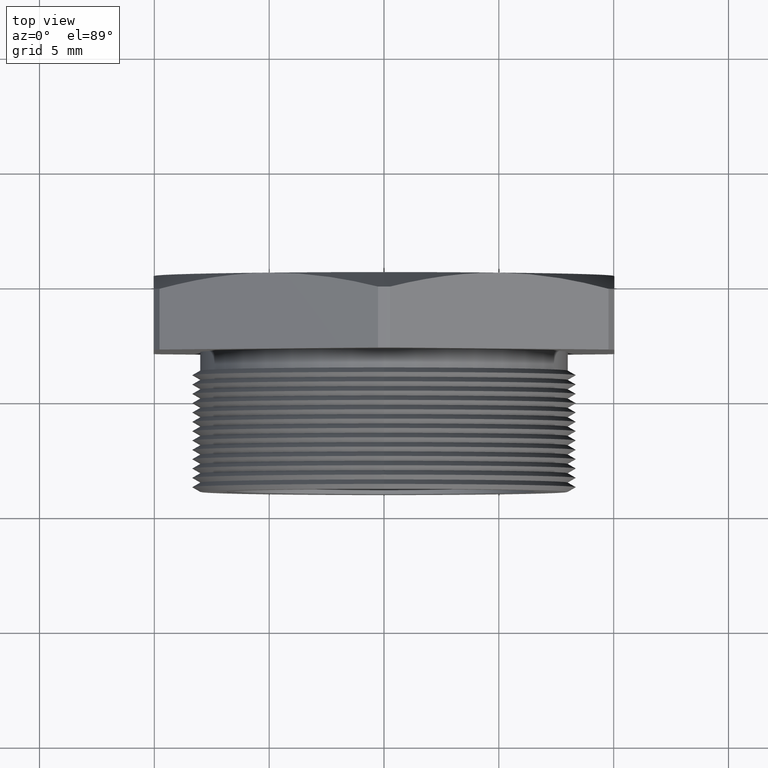
[diagram: clean part render]
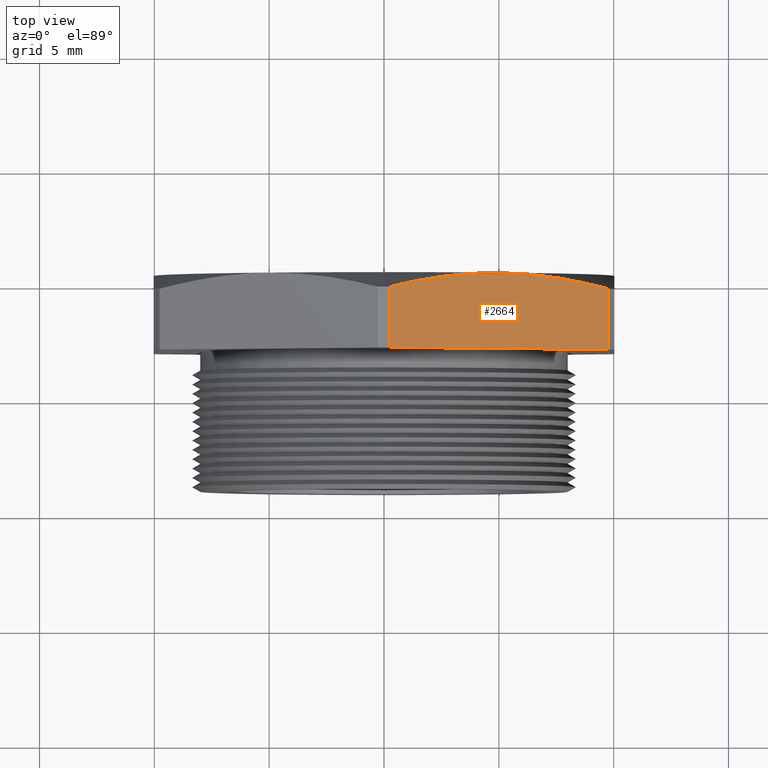
[diagram: same view with one face highlighted and labeled with its STEP entity id]
A machine part, top view. The second image highlights one B-rep face of the part: STEP entity #2664.
In plain terms, the highlighted planar face has unit normal (0.5, -0, 0.866).
Its self-contained STEP definition (entity closure, byte-faithful):
#12 = ORIENTED_EDGE ( 'NONE', *, *, #13, .F. ) ;
#13 = EDGE_CURVE ( 'NONE', #201, #2683, #1869, .T. ) ;
#15 = ORIENTED_EDGE ( 'NONE', *, *, #16, .T. ) ;
#16 = EDGE_CURVE ( 'NONE', #110, #1653, #1861, .T. ) ;
#110 = VERTEX_POINT ( 'NONE', #2092 ) ;
#201 = VERTEX_POINT ( 'NONE', #2261 ) ;
#1653 = VERTEX_POINT ( 'NONE', #5057 ) ;
#1661 = VERTEX_POINT ( 'NONE', #5038 ) ;
#1663 = EDGE_CURVE ( 'NONE', #1653, #1661, #5036, .T. ) ;
#1855 = CARTESIAN_POINT ( 'NONE',  ( 0.1975000000000001800, 0.4075548905829479700, 0.3420800344948533000 ) ) ;
#1856 = CARTESIAN_POINT ( 'NONE',  ( 0.2289182622552072300, 0.4075548905829479700, 0.3239406923243393600 ) ) ;
#1857 = CARTESIAN_POINT ( 'NONE',  ( 0.2602199223343859600, 0.4051865378565921400, 0.3058686704515431500 ) ) ;
#1858 = CARTESIAN_POINT ( 'NONE',  ( 0.3226184986981740500, 0.3962912005447678500, 0.2698428355908606400 ) ) ;
#1859 = CARTESIAN_POINT ( 'NONE',  ( 0.3537166105170322900, 0.3897884989263423700, 0.2518883323609538100 ) ) ;
#1860 = CARTESIAN_POINT ( 'NONE',  ( 0.3847399997329630200, 0.3817680770869766300, 0.2339769702459616700 ) ) ;
#1861 = B_SPLINE_CURVE_WITH_KNOTS ( 'NONE', 3,
 ( #1860, #1859, #1858, #1857, #1856, #1855 ),
 .UNSPECIFIED., .F., .F.,
 ( 4, 2, 4 ),
 ( 2.335025902633483100E-007, 0.002760212844509914900, 0.005520192186429569000 ),
 .UNSPECIFIED. ) ;
#1862 = DIRECTION ( 'NONE',  ( -0.8660254037844386000, 0.0000000000000000000, 0.5000000000000002200 ) ) ;
#1863 = VECTOR ( 'NONE', #1862, 39.37007874015747400 ) ;
#1864 = CARTESIAN_POINT ( 'NONE',  ( 0.4337500000000000200, 0.2775548905829479700, 0.2056810333988042200 ) ) ;
#1869 = LINE ( 'NONE', #1864, #1863 ) ;
#2092 = CARTESIAN_POINT ( 'NONE',  ( 0.3847399997329630200, 0.3817680770869766300, 0.2339769702459616700 ) ) ;
#2261 = CARTESIAN_POINT ( 'NONE',  ( 0.3847399997329628600, 0.2775548905829479700, 0.2339769702459617900 ) ) ;
#2518 = EDGE_CURVE ( 'NONE', #110, #201, #5590, .T. ) ;
#2659 = ORIENTED_EDGE ( 'NONE', *, *, #2518, .F. ) ;
#2662 = EDGE_LOOP ( 'NONE', ( #2659, #15, #6278, #6279, #12 ) ) ;
#2664 = ADVANCED_FACE ( 'NONE', ( #5871 ), #5870, .T. ) ;
#2683 = VERTEX_POINT ( 'NONE', #5894 ) ;
#2684 = EDGE_CURVE ( 'NONE', #2683, #1661, #5888, .T. ) ;
#5030 = CARTESIAN_POINT ( 'NONE',  ( 0.1350411223813806300, 0.4052207272773963300, 0.3781406843012452000 ) ) ;
#5031 = CARTESIAN_POINT ( 'NONE',  ( 0.1663280206471310900, 0.4075548905829478600, 0.3600771851654057700 ) ) ;
#5032 = CARTESIAN_POINT ( 'NONE',  ( 0.1975000000000001800, 0.4075548905829479700, 0.3420800344948533000 ) ) ;
#5036 = B_SPLINE_CURVE_WITH_KNOTS ( 'NONE', 3,
 ( #5032, #5031, #5030, #5092, #5091, #5090 ),
 .UNSPECIFIED., .F., .F.,
 ( 4, 2, 4 ),
 ( 0.005520192186429569000, 0.008258536476824115300, 0.01099688076721866100 ),
 .UNSPECIFIED. ) ;
#5038 = CARTESIAN_POINT ( 'NONE',  ( 0.01026000026703712300, 0.3817680770869766300, 0.4501830987437449600 ) ) ;
#5057 = CARTESIAN_POINT ( 'NONE',  ( 0.1975000000000001800, 0.4075548905829479700, 0.3420800344948533000 ) ) ;
#5090 = CARTESIAN_POINT ( 'NONE',  ( 0.01026000026703712300, 0.3817680770869766300, 0.4501830987437449600 ) ) ;
#5091 = CARTESIAN_POINT ( 'NONE',  ( 0.04113558834110801800, 0.3897502881590466700, 0.4323570696577921400 ) ) ;
#5092 = CARTESIAN_POINT ( 'NONE',  ( 0.07225680565382722200, 0.3962764420413619800, 0.4143892264647847100 ) ) ;
#5587 = DIRECTION ( 'NONE',  ( -0.0000000000000000000, -1.000000000000000000, -0.0000000000000000000 ) ) ;
#5588 = VECTOR ( 'NONE', #5587, 39.37007874015748100 ) ;
#5589 = CARTESIAN_POINT ( 'NONE',  ( 0.3847399997329630800, 0.0000000000000000000, 0.2339769702459615400 ) ) ;
#5590 = LINE ( 'NONE', #5589, #5588 ) ;
#5865 = DIRECTION ( 'NONE',  ( 0.8660254037844386000, 0.0000000000000000000, -0.5000000000000001100 ) ) ;
#5866 = DIRECTION ( 'NONE',  ( 0.5000000000000001100, -0.0000000000000000000, 0.8660254037844386000 ) ) ;
#5867 = AXIS2_PLACEMENT_3D ( 'NONE', #5869, #5866, #5865 ) ;
#5869 = CARTESIAN_POINT ( 'NONE',  ( 0.3949999999999999100, 0.4075548905829479700, 0.2280533563299023100 ) ) ;
#5870 = PLANE ( 'NONE',  #5867 ) ;
#5871 = FACE_OUTER_BOUND ( 'NONE', #2662, .T. ) ;
#5885 = DIRECTION ( 'NONE',  ( 0.0000000000000000000, 1.000000000000000000, 0.0000000000000000000 ) ) ;
#5886 = VECTOR ( 'NONE', #5885, 39.37007874015748100 ) ;
#5887 = CARTESIAN_POINT ( 'NONE',  ( 0.01026000026703705700, 0.0000000000000000000, 0.4501830987437449000 ) ) ;
#5888 = LINE ( 'NONE', #5887, #5886 ) ;
#5894 = CARTESIAN_POINT ( 'NONE',  ( 0.01026000026703743400, 0.2775548905829479700, 0.4501830987437449600 ) ) ;
#6278 = ORIENTED_EDGE ( 'NONE', *, *, #1663, .T. ) ;
#6279 = ORIENTED_EDGE ( 'NONE', *, *, #2684, .F. ) ;